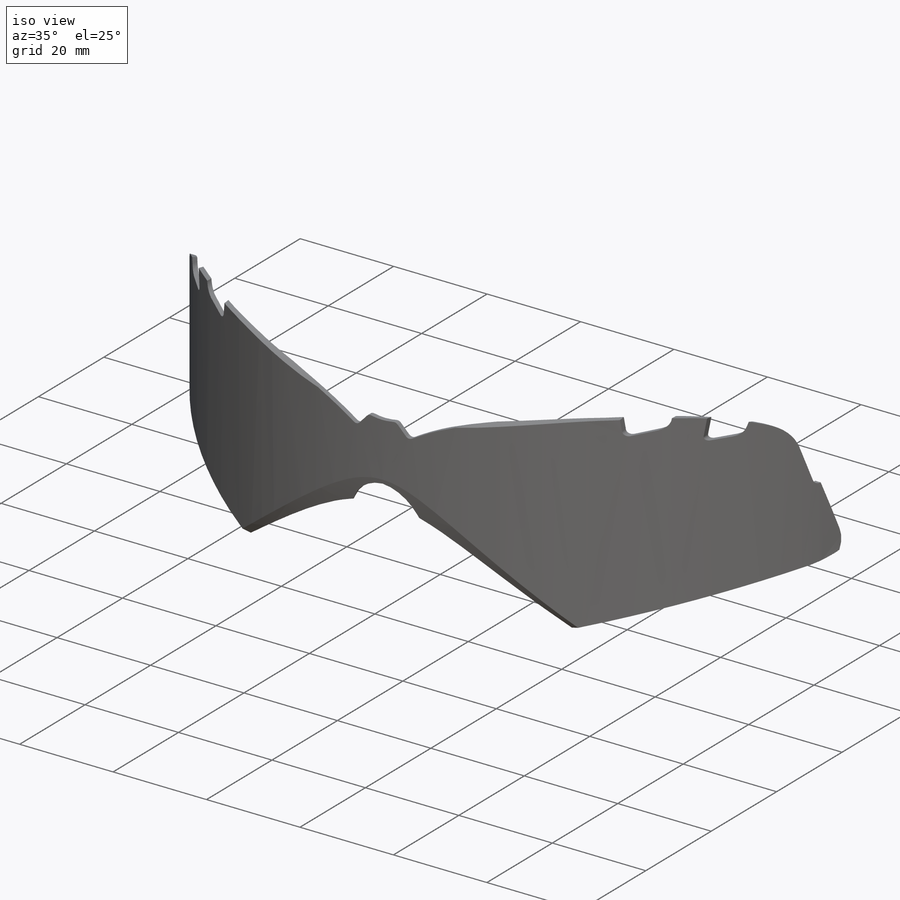
[diagram: iso view]
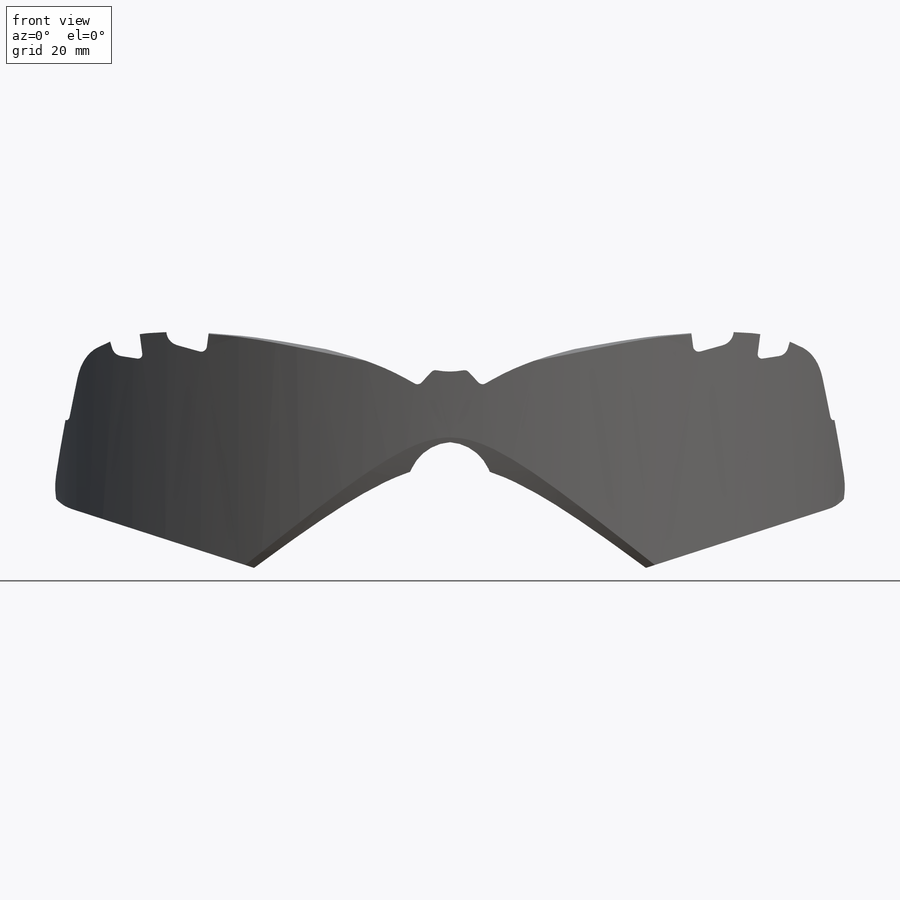
[diagram: front view]
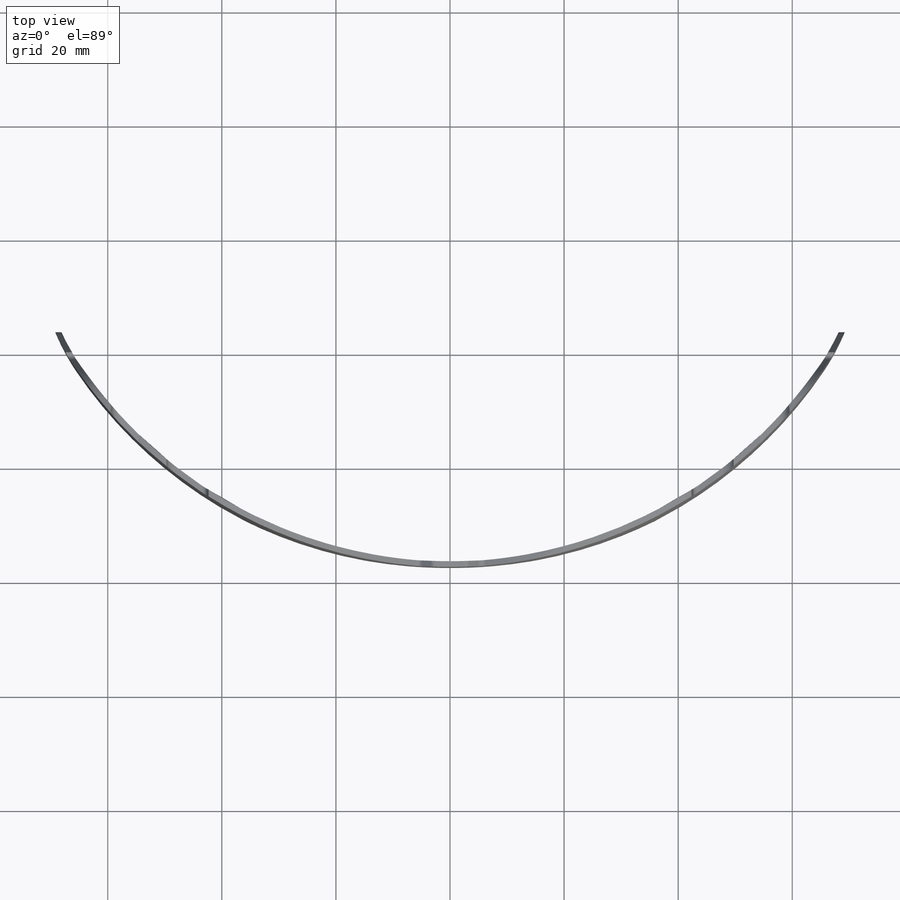
[diagram: top view]
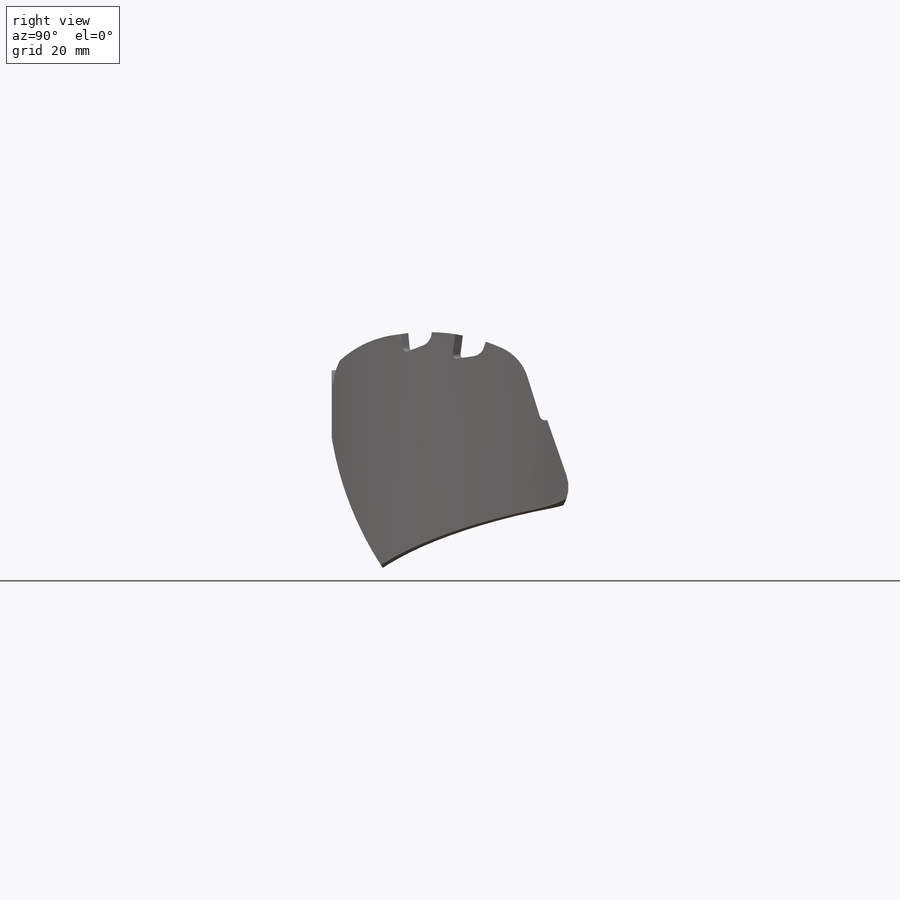
[diagram: right view]
SOLIDWORKS PART (.sldprt)
format: sldprt  version: not decoded by parser v0  size: 709,632 bytes
history: native  units: mm
features: sketch x3, extrude x3, boolean_combine x2, material x1 (+13 scaffold rows collapsed)
feature tree (22):
  scaffold x13  (default folders/planes/origin — collapsed)
  material  "Material <not specified>"
  sketch  "Sketch1"  dims[c1.D1=1.0mm c1.D2=1.0mm c1.D3=30.0mm c2.D2=30.0mm c2.D1=2.0mm c3.D2=1.0mm c3.D3=3.0mm c3.D1=5.0mm c4.D2=5.0mm c4.D3=5.0mm c4.D1=1.0mm c5.D2=1.0mm c5.D3=1.0mm c5.D4=1.4mm c5.D1=8.0mm c6.D3=8.0mm c6.D1=4.1mm c7.D3=4.1mm c7.D4=22.0mm c7.D5=22.0mm c8.D4=50.0mm c8.D5=16.0mm c8.D1=4.0mm c8.D2=4.0mm c9.D4=5.0mm c9.D1=5.0mm]
  sketch  "Sketch2"  dims[c1.D2=~356.215796mm c1.D1=50.0mm c2.D2=0.5mm c2.D3=1.0mm c2.D1=3.5mm c2.D4=1.25mm]
  extrude  "Boss-Extrude4"  Depth=50mm
  extrude  "Boss-Extrude5"  Depth=50mm
  sketch  "Sketch5"  dims[c1.D1=2.0mm c1.D2=0.5mm c1.D3=1.0mm c1.D4=1.0mm c2.D1=0.5mm c2.D3=0.5mm c2.D5=0.5mm c2.D6=0.5mm c3.D5=0.5mm c3.D8=0.5mm c3.D9=~0.494407mm c3.D1=2.0mm c3.D2=~1.735802mm c3.D4=~1.810763mm c3.D6=0.5mm c3.D7=~0.544878mm c4.D8=~0.544878mm c4.D7=~9.377508mm c4.D1=0.85mm c4.D6=0.2mm]
  extrude  "Boss-Extrude7"  Depth=100mm
  boolean_combine  "Combine9"
  boolean_combine  "Combine13"
decode coverage: 6 of 8 modeling features carry decoded parameters
note: ~ marks probable driven/reference dimensions
note: suppression state not decoded; provenance and decode notes live in map.json
